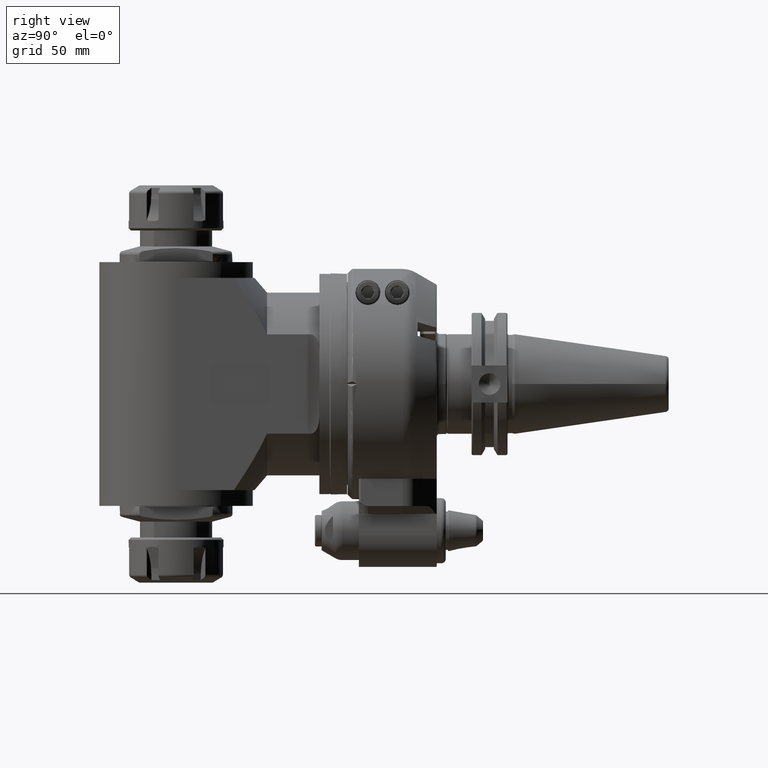
[diagram: clean part render]
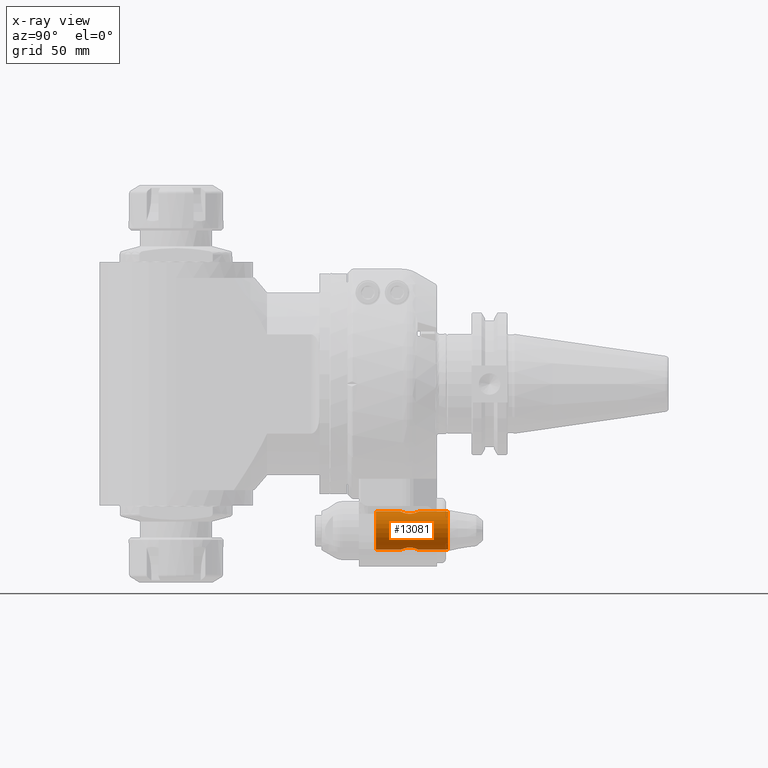
[diagram: x-ray — body ghosted, one internal face saturated and labeled with its STEP entity id]
A machine part, right view, then the same camera in x-ray: the body is ghosted and one INTERNAL B-rep face — a face not visible from any outside direction — is saturated and labeled: STEP entity #13081.
In plain terms, the highlighted cylindrical surface (bore or boss wall) has radius 8.5 mm, axis along (0, 1, 0).
Its self-contained STEP definition (entity closure, byte-faithful):
#293=FACE_BOUND('',#2666,.T.);
#558=B_SPLINE_CURVE_WITH_KNOTS('',3,(#22703,#22704,#22705,#22706,#22707,
#22708,#22709,#22710,#22711,#22712),.UNSPECIFIED.,.F.,.F.,(4,2,2,2,4),(0.613430912820706,
0.766629647538084,0.919828382255461,1.07334510394844,1.22686182564141),
 .UNSPECIFIED.);
#559=B_SPLINE_CURVE_WITH_KNOTS('',3,(#22714,#22715,#22716,#22717,#22718,
#22719,#22720,#22721,#22722,#22723),.UNSPECIFIED.,.F.,.F.,(4,2,2,2,4),(-1.22686182564141,
-1.07334510394844,-0.919828382255462,-0.766629647538084,-0.613430912820706),
 .UNSPECIFIED.);
#560=B_SPLINE_CURVE_WITH_KNOTS('',3,(#22725,#22726,#22727,#22728,#22729,
#22730,#22731,#22732,#22733,#22734,#22735,#22736,#22737,#22738,#22739,#22740,
#22741,#22742,#22743),.UNSPECIFIED.,.F.,.F.,(4,2,2,2,3,2,2,2,4),(-0.613430912820706,
-0.460232178103329,-0.307033443385951,-0.153516721692976,0.,0.153516721692975,
0.307033443385951,0.460232178103329,0.613430912820706),.UNSPECIFIED.);
#561=B_SPLINE_CURVE_WITH_KNOTS('',3,(#22745,#22746,#22747,#22748,#22749,
#22750,#22751,#22752,#22753,#22754,#22755,#22756,#22757,#22758,#22759,#22760,
#22761,#22762,#22763,#22764,#22765,#22766,#22767,#22768,#22769,#22770,#22771,
#22772,#22773,#22774,#22775,#22776,#22777,#22778),.UNSPECIFIED.,.T.,.F.,
(4,2,2,2,2,2,2,2,2,2,2,2,2,2,2,2,4),(-2.45372365128283,-2.30020692958985,
-2.14669020789687,-1.9934914731795,-1.84029273846212,-1.68709400374474,
-1.53389526902736,-1.38037854733439,-1.22686182564141,-1.07334510394844,
-0.919828382255461,-0.766629647538084,-0.613430912820706,-0.460232178103328,
-0.307033443385951,-0.153516721692975,0.),.UNSPECIFIED.);
#1139=CYLINDRICAL_SURFACE('',#14526,8.5);
#1771=FACE_OUTER_BOUND('',#2665,.T.);
#2665=EDGE_LOOP('',(#11220,#11221,#11222,#11223,#11224,#11225,#11226,#11227,
#11228));
#2666=EDGE_LOOP('',(#11229));
#3509=CIRCLE('',#14525,8.5);
#3510=CIRCLE('',#14527,8.5);
#4338=LINE('',#22701,#5161);
#4339=LINE('',#22724,#5162);
#5161=VECTOR('',#17872,8.5);
#5162=VECTOR('',#17873,8.5);
#6243=VERTEX_POINT('',#22695);
#6244=VERTEX_POINT('',#22698);
#6245=VERTEX_POINT('',#22700);
#6246=VERTEX_POINT('',#22702);
#6247=VERTEX_POINT('',#22713);
#6248=VERTEX_POINT('',#22744);
#7964=EDGE_CURVE('',#6243,#6243,#3509,.T.);
#7965=EDGE_CURVE('',#6244,#6244,#3510,.T.);
#7966=EDGE_CURVE('',#6244,#6245,#4338,.T.);
#7967=EDGE_CURVE('',#6246,#6245,#558,.F.);
#7968=EDGE_CURVE('',#6247,#6246,#559,.F.);
#7969=EDGE_CURVE('',#6247,#6243,#4339,.T.);
#7970=EDGE_CURVE('',#6245,#6247,#560,.F.);
#7971=EDGE_CURVE('',#6248,#6248,#561,.F.);
#11220=ORIENTED_EDGE('',*,*,#7965,.F.);
#11221=ORIENTED_EDGE('',*,*,#7966,.T.);
#11222=ORIENTED_EDGE('',*,*,#7967,.F.);
#11223=ORIENTED_EDGE('',*,*,#7968,.F.);
#11224=ORIENTED_EDGE('',*,*,#7969,.T.);
#11225=ORIENTED_EDGE('',*,*,#7964,.F.);
#11226=ORIENTED_EDGE('',*,*,#7969,.F.);
#11227=ORIENTED_EDGE('',*,*,#7970,.F.);
#11228=ORIENTED_EDGE('',*,*,#7966,.F.);
#11229=ORIENTED_EDGE('',*,*,#7971,.F.);
#13081=ADVANCED_FACE('',(#1771,#293),#1139,.T.);
#14525=AXIS2_PLACEMENT_3D('',#22696,#17866,#17867);
#14526=AXIS2_PLACEMENT_3D('',#22697,#17868,#17869);
#14527=AXIS2_PLACEMENT_3D('',#22699,#17870,#17871);
#17866=DIRECTION('center_axis',(0.,-1.,0.));
#17867=DIRECTION('ref_axis',(0.,0.,-1.));
#17868=DIRECTION('center_axis',(0.,1.,0.));
#17869=DIRECTION('ref_axis',(0.,0.,-1.));
#17870=DIRECTION('center_axis',(0.,1.,0.));
#17871=DIRECTION('ref_axis',(0.,0.,1.));
#17872=DIRECTION('',(0.,-1.,0.));
#17873=DIRECTION('',(0.,-1.,0.));
#22695=CARTESIAN_POINT('',(1.04094977927525E-15,12.5,-56.5));
#22696=CARTESIAN_POINT('Origin',(0.,12.5,-65.));
#22697=CARTESIAN_POINT('Origin',(0.,-3.0000024,-65.));
#22698=CARTESIAN_POINT('',(1.04094977927525E-15,44.5,-56.5));
#22699=CARTESIAN_POINT('Origin',(0.,44.5,-65.));
#22700=CARTESIAN_POINT('',(7.28641706754842E-16,31.5,-56.5));
#22701=CARTESIAN_POINT('',(1.04094977927525E-15,-3.0000024,-56.5));
#22702=CARTESIAN_POINT('',(4.,27.5,-57.5));
#22703=CARTESIAN_POINT('Ctrl Pts',(1.38777878078145E-16,31.5,-56.5));
#22704=CARTESIAN_POINT('Ctrl Pts',(0.510662449057925,31.5,-56.5));
#22705=CARTESIAN_POINT('Ctrl Pts',(1.05009892728331,31.3963150371533,-56.550307430602));
#22706=CARTESIAN_POINT('Ctrl Pts',(2.03353418176194,30.9855009215929,-56.7317020547219));
#22707=CARTESIAN_POINT('Ctrl Pts',(2.47807547728031,30.6787787722121,-56.8607634394313));
#22708=CARTESIAN_POINT('Ctrl Pts',(3.17950597965918,29.9773482698332,-57.1082736246508));
#22709=CARTESIAN_POINT('Ctrl Pts',(3.48568850685861,29.5330622122315,-57.2442369519195));
#22710=CARTESIAN_POINT('Ctrl Pts',(3.89607388117928,28.5506991349841,-57.4420572899479));
#22711=CARTESIAN_POINT('Ctrl Pts',(4.,28.0117224056432,-57.5));
#22712=CARTESIAN_POINT('Ctrl Pts',(4.,27.5,-57.5));
#22713=CARTESIAN_POINT('',(3.12308072520408E-16,23.5,-56.5));
#22714=CARTESIAN_POINT('Ctrl Pts',(4.,27.5,-57.5));
#22715=CARTESIAN_POINT('Ctrl Pts',(4.,26.9882775943568,-57.5));
#22716=CARTESIAN_POINT('Ctrl Pts',(3.89607388117928,26.4493008650159,-57.4420572899479));
#22717=CARTESIAN_POINT('Ctrl Pts',(3.4856885068586,25.4669377877685,-57.2442369519195));
#22718=CARTESIAN_POINT('Ctrl Pts',(3.17950597965918,25.0226517301668,-57.1082736246508));
#22719=CARTESIAN_POINT('Ctrl Pts',(2.47807547728031,24.3212212277879,-56.8607634394313));
#22720=CARTESIAN_POINT('Ctrl Pts',(2.03353418176193,24.0144990784071,-56.7317020547219));
#22721=CARTESIAN_POINT('Ctrl Pts',(1.05009892728331,23.6036849628466,-56.550307430602));
#22722=CARTESIAN_POINT('Ctrl Pts',(0.510662449057925,23.5,-56.5));
#22723=CARTESIAN_POINT('Ctrl Pts',(-4.16333634234434E-16,23.5,-56.5));
#22724=CARTESIAN_POINT('',(1.04094977927525E-15,-3.0000024,-56.5));
#22725=CARTESIAN_POINT('Ctrl Pts',(-1.38777878078145E-16,23.5,-56.5));
#22726=CARTESIAN_POINT('Ctrl Pts',(-0.510662449057925,23.5,-56.5));
#22727=CARTESIAN_POINT('Ctrl Pts',(-1.05009892728331,23.6036849628466,-56.550307430602));
#22728=CARTESIAN_POINT('Ctrl Pts',(-2.03353418176193,24.0144990784071,-56.7317020547219));
#22729=CARTESIAN_POINT('Ctrl Pts',(-2.4780754772803,24.3212212277879,-56.8607634394313));
#22730=CARTESIAN_POINT('Ctrl Pts',(-3.17950597965918,25.0226517301668,-57.1082736246508));
#22731=CARTESIAN_POINT('Ctrl Pts',(-3.48568850685861,25.4669377877685,-57.2442369519195));
#22732=CARTESIAN_POINT('Ctrl Pts',(-3.89607388117928,26.4493008650159,-57.4420572899479));
#22733=CARTESIAN_POINT('Ctrl Pts',(-4.,26.9882775943567,-57.5));
#22734=CARTESIAN_POINT('Ctrl Pts',(-4.,27.5,-57.5));
#22735=CARTESIAN_POINT('Ctrl Pts',(-4.,28.0117224056432,-57.5));
#22736=CARTESIAN_POINT('Ctrl Pts',(-3.89607388117927,28.5506991349841,-57.4420572899479));
#22737=CARTESIAN_POINT('Ctrl Pts',(-3.4856885068586,29.5330622122315,-57.2442369519195));
#22738=CARTESIAN_POINT('Ctrl Pts',(-3.17950597965918,29.9773482698332,-57.1082736246508));
#22739=CARTESIAN_POINT('Ctrl Pts',(-2.47807547728031,30.6787787722121,-56.8607634394313));
#22740=CARTESIAN_POINT('Ctrl Pts',(-2.03353418176194,30.9855009215929,-56.7317020547219));
#22741=CARTESIAN_POINT('Ctrl Pts',(-1.05009892728332,31.3963150371533,-56.550307430602));
#22742=CARTESIAN_POINT('Ctrl Pts',(-0.510662449057925,31.5,-56.5));
#22743=CARTESIAN_POINT('Ctrl Pts',(6.24500451351651E-16,31.5,-56.5));
#22744=CARTESIAN_POINT('',(4.,27.5,-72.5));
#22745=CARTESIAN_POINT('Ctrl Pts',(-4.,27.5,-72.5));
#22746=CARTESIAN_POINT('Ctrl Pts',(-4.,26.9882775943567,-72.5));
#22747=CARTESIAN_POINT('Ctrl Pts',(-3.89607388117928,26.4493008650159,-72.5579427100521));
#22748=CARTESIAN_POINT('Ctrl Pts',(-3.48568850685861,25.4669377877685,-72.7557630480805));
#22749=CARTESIAN_POINT('Ctrl Pts',(-3.17950597965918,25.0226517301668,-72.8917263753492));
#22750=CARTESIAN_POINT('Ctrl Pts',(-2.4780754772803,24.3212212277879,-73.1392365605687));
#22751=CARTESIAN_POINT('Ctrl Pts',(-2.03353418176193,24.0144990784071,-73.2682979452781));
#22752=CARTESIAN_POINT('Ctrl Pts',(-1.05009892728331,23.6036849628466,-73.449692569398));
#22753=CARTESIAN_POINT('Ctrl Pts',(-0.510662449057925,23.5,-73.5));
#22754=CARTESIAN_POINT('Ctrl Pts',(0.510662449057925,23.5,-73.5));
#22755=CARTESIAN_POINT('Ctrl Pts',(1.05009892728331,23.6036849628466,-73.449692569398));
#22756=CARTESIAN_POINT('Ctrl Pts',(2.03353418176193,24.0144990784071,-73.2682979452781));
#22757=CARTESIAN_POINT('Ctrl Pts',(2.47807547728031,24.3212212277879,-73.1392365605687));
#22758=CARTESIAN_POINT('Ctrl Pts',(3.17950597965918,25.0226517301668,-72.8917263753492));
#22759=CARTESIAN_POINT('Ctrl Pts',(3.48568850685861,25.4669377877685,-72.7557630480805));
#22760=CARTESIAN_POINT('Ctrl Pts',(3.89607388117928,26.4493008650159,-72.5579427100521));
#22761=CARTESIAN_POINT('Ctrl Pts',(4.,26.9882775943568,-72.5));
#22762=CARTESIAN_POINT('Ctrl Pts',(4.,28.0117224056432,-72.5));
#22763=CARTESIAN_POINT('Ctrl Pts',(3.89607388117928,28.5506991349841,-72.5579427100521));
#22764=CARTESIAN_POINT('Ctrl Pts',(3.48568850685861,29.5330622122315,-72.7557630480805));
#22765=CARTESIAN_POINT('Ctrl Pts',(3.17950597965918,29.9773482698332,-72.8917263753492));
#22766=CARTESIAN_POINT('Ctrl Pts',(2.47807547728031,30.6787787722121,-73.1392365605687));
#22767=CARTESIAN_POINT('Ctrl Pts',(2.03353418176194,30.9855009215929,-73.2682979452781));
#22768=CARTESIAN_POINT('Ctrl Pts',(1.05009892728332,31.3963150371533,-73.449692569398));
#22769=CARTESIAN_POINT('Ctrl Pts',(0.510662449057926,31.5,-73.5));
#22770=CARTESIAN_POINT('Ctrl Pts',(-0.510662449057925,31.5,-73.5));
#22771=CARTESIAN_POINT('Ctrl Pts',(-1.05009892728332,31.3963150371533,-73.449692569398));
#22772=CARTESIAN_POINT('Ctrl Pts',(-2.03353418176194,30.9855009215929,-73.2682979452781));
#22773=CARTESIAN_POINT('Ctrl Pts',(-2.47807547728031,30.6787787722121,-73.1392365605687));
#22774=CARTESIAN_POINT('Ctrl Pts',(-3.17950597965918,29.9773482698332,-72.8917263753492));
#22775=CARTESIAN_POINT('Ctrl Pts',(-3.4856885068586,29.5330622122315,-72.7557630480805));
#22776=CARTESIAN_POINT('Ctrl Pts',(-3.89607388117927,28.5506991349841,-72.5579427100521));
#22777=CARTESIAN_POINT('Ctrl Pts',(-4.,28.0117224056432,-72.5));
#22778=CARTESIAN_POINT('Ctrl Pts',(-4.,27.5,-72.5));